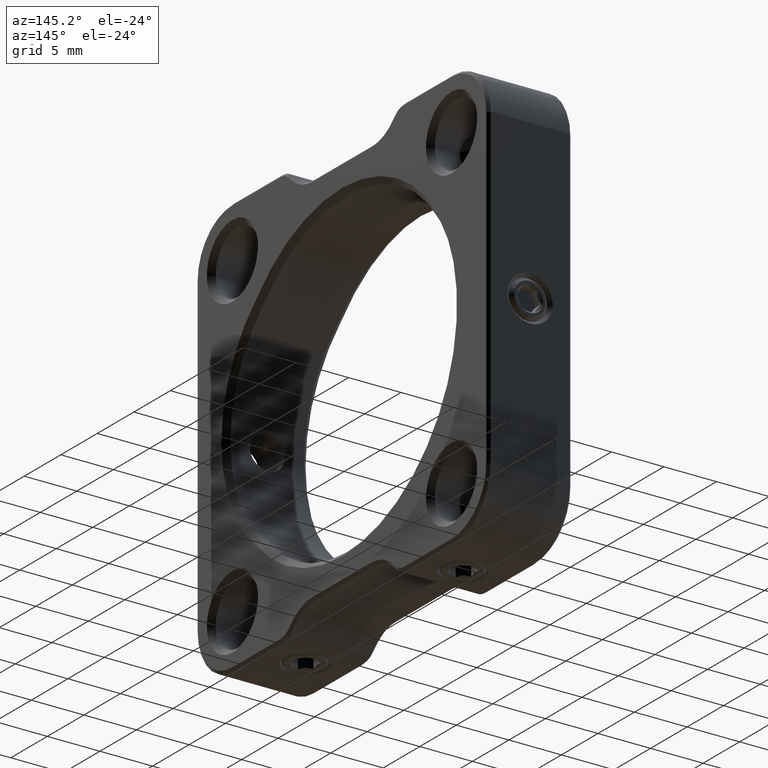
[diagram: clean part render]
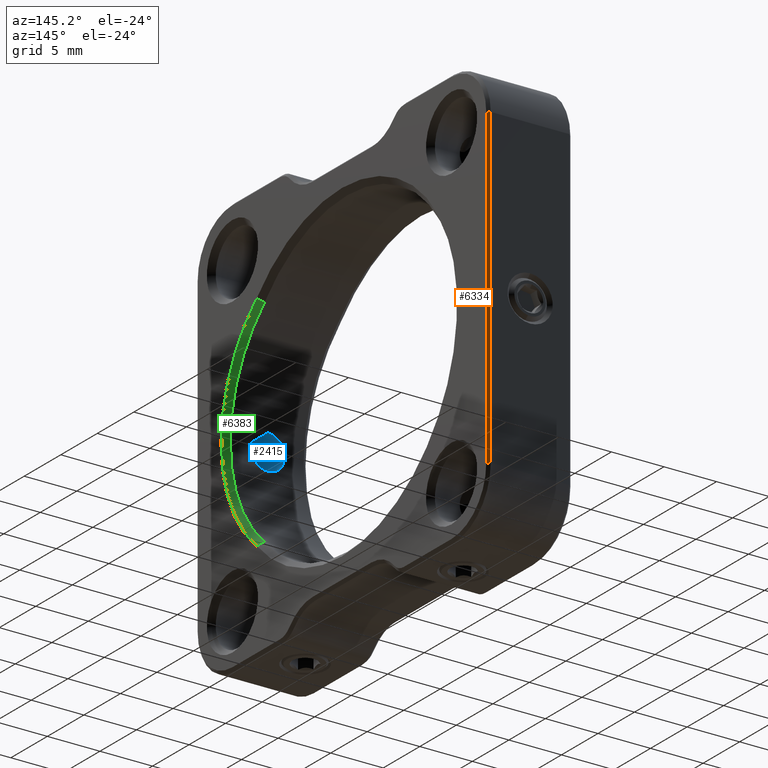
[diagram: same view with three faces highlighted in distinct colors, each labeled with its STEP entity id]
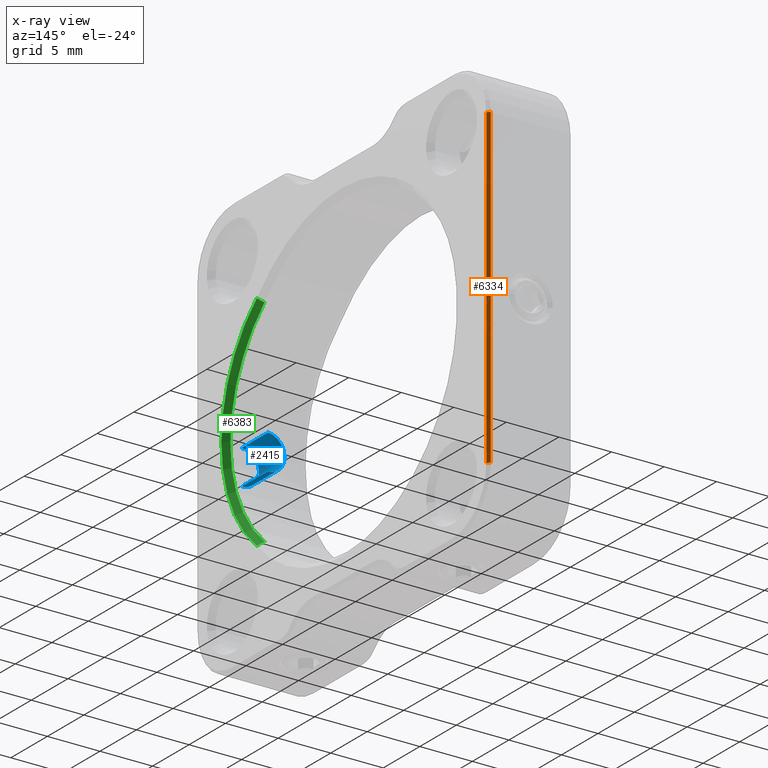
[diagram: x-ray of the same camera — body ghosted, the three highlighted faces saturated]
A machine part, auxiliary view with three faces highlighted in distinct colors.
The next image is the same camera in x-ray (body ghosted, the three faces saturated) — at least one of them is partly hidden behind the body in this view.
Their STEP definitions:

[orange] entity #6334 — the highlighted planar face has unit normal (0.7071, 0.7071, 0).
#328 = FACE_OUTER_BOUND ( 'NONE', #3293, .T. ) ;
#378 = CARTESIAN_POINT ( 'NONE',  ( -10.70960063692994879, 21.85930122340910842, 55.00000000000000711 ) ) ;
#895 = CARTESIAN_POINT ( 'NONE',  ( -10.95960063692994879, 22.10930122340910842, 25.00000000000000711 ) ) ;
#944 = VECTOR ( 'NONE', #4380, 1000.000000000000114 ) ;
#1165 = CARTESIAN_POINT ( 'NONE',  ( -10.70960063692994879, 21.85930122340910842, 55.00000000000000711 ) ) ;
#1246 = EDGE_CURVE ( 'NONE', #7342, #8531, #7981, .T. ) ;
#1423 = DIRECTION ( 'NONE',  ( 0.000000000000000000, 0.000000000000000000, 1.000000000000000000 ) ) ;
#1530 = ORIENTED_EDGE ( 'NONE', *, *, #7220, .F. ) ;
#1605 = PLANE ( 'NONE',  #6769 ) ;
#1770 = LINE ( 'NONE', #1165, #6395 ) ;
#2129 = CARTESIAN_POINT ( 'NONE',  ( -10.70960063692994879, 21.85930122340910842, 40.00000000000001421 ) ) ;
#2220 = ORIENTED_EDGE ( 'NONE', *, *, #4821, .F. ) ;
#2239 = ORIENTED_EDGE ( 'NONE', *, *, #3221, .F. ) ;
#3079 = DIRECTION ( 'NONE',  ( 0.000000000000000000, 0.000000000000000000, -1.000000000000000000 ) ) ;
#3221 = EDGE_CURVE ( 'NONE', #8531, #7296, #8177, .T. ) ;
#3293 = EDGE_LOOP ( 'NONE', ( #2239, #4900, #2220, #1530 ) ) ;
#4380 = DIRECTION ( 'NONE',  ( -0.7071067811865474617, 0.7071067811865474617, 0.000000000000000000 ) ) ;
#4505 = DIRECTION ( 'NONE',  ( 0.7071067811865475727, 0.7071067811865475727, 0.000000000000000000 ) ) ;
#4821 = EDGE_CURVE ( 'NONE', #5156, #7342, #6732, .T. ) ;
#4900 = ORIENTED_EDGE ( 'NONE', *, *, #1246, .F. ) ;
#5156 = VERTEX_POINT ( 'NONE', #378 ) ;
#5604 = VECTOR ( 'NONE', #9171, 1000.000000000000114 ) ;
#6334 = ADVANCED_FACE ( 'NONE', ( #328 ), #1605, .T. ) ;
#6395 = VECTOR ( 'NONE', #1423, 1000.000000000000000 ) ;
#6490 = CARTESIAN_POINT ( 'NONE',  ( -10.95960063692994879, 22.10930122340910842, 25.00000000000000711 ) ) ;
#6589 = VECTOR ( 'NONE', #7559, 1000.000000000000000 ) ;
#6732 = LINE ( 'NONE', #7280, #944 ) ;
#6769 = AXIS2_PLACEMENT_3D ( 'NONE', #2129, #4505, #3079 ) ;
#7220 = EDGE_CURVE ( 'NONE', #7296, #5156, #1770, .T. ) ;
#7280 = CARTESIAN_POINT ( 'NONE',  ( -10.70960063692994879, 21.85930122340910842, 55.00000000000000711 ) ) ;
#7296 = VERTEX_POINT ( 'NONE', #8036 ) ;
#7342 = VERTEX_POINT ( 'NONE', #8906 ) ;
#7559 = DIRECTION ( 'NONE',  ( 0.000000000000000000, 0.000000000000000000, -1.000000000000000000 ) ) ;
#7981 = LINE ( 'NONE', #895, #6589 ) ;
#8036 = CARTESIAN_POINT ( 'NONE',  ( -10.70960063692994879, 21.85930122340910842, 25.00000000000000711 ) ) ;
#8177 = LINE ( 'NONE', #9270, #5604 ) ;
#8531 = VERTEX_POINT ( 'NONE', #6490 ) ;
#8906 = CARTESIAN_POINT ( 'NONE',  ( -10.95960063692994879, 22.10930122340910842, 55.00000000000000711 ) ) ;
#9171 = DIRECTION ( 'NONE',  ( 0.7071067811865474617, -0.7071067811865474617, 0.000000000000000000 ) ) ;
#9270 = CARTESIAN_POINT ( 'NONE',  ( -10.95960063692994879, 22.10930122340910842, 25.00000000000000711 ) ) ;

[blue] entity #2415 — the highlighted cylindrical surface (edge-blend (fillet) strip) has radius 1.65 mm, axis along (-0, -1, -0).
#216 = CARTESIAN_POINT ( 'NONE',  ( -15.71572568399472836, -13.82691060832602403, 38.68781301337136824 ) ) ;
#325 = CARTESIAN_POINT ( 'NONE',  ( -14.70960063692994879, -17.89069877659089158, 41.65000000000001279 ) ) ;
#326 = ORIENTED_EDGE ( 'NONE', *, *, #7304, .T. ) ;
#375 = CARTESIAN_POINT ( 'NONE',  ( -14.70960063692994879, -13.78948603514530191, 38.35000000000001563 ) ) ;
#685 = ORIENTED_EDGE ( 'NONE', *, *, #6388, .T. ) ;
#987 = CARTESIAN_POINT ( 'NONE',  ( -15.24190752573225005, -13.79968435690930839, 38.43448257148707370 ) ) ;
#1018 = CARTESIAN_POINT ( 'NONE',  ( -15.80053497431662457, -13.83361147108922573, 38.75745184759037443 ) ) ;
#1048 = CARTESIAN_POINT ( 'NONE',  ( -14.70960063692994879, -13.78948603514530191, 38.35000000000001563 ) ) ;
#1083 = CARTESIAN_POINT ( 'NONE',  ( -14.81872989024464893, -13.78948603514529481, 38.35000000000000142 ) ) ;
#1144 = CARTESIAN_POINT ( 'NONE',  ( -15.44108710665071449, -13.80906737880190782, 41.48294278190731177 ) ) ;
#1206 = CARTESIAN_POINT ( 'NONE',  ( -15.24130088137819428, -13.79966028147128299, 41.56572238913837936 ) ) ;
#1620 = ORIENTED_EDGE ( 'NONE', *, *, #8850, .F. ) ;
#1660 = DIRECTION ( 'NONE',  ( -0.000000000000000000, -1.000000000000000000, -0.000000000000000000 ) ) ;
#1765 = CARTESIAN_POINT ( 'NONE',  ( -16.35952146621214354, -13.89068910017046576, 39.78393199430575322 ) ) ;
#1803 = CARTESIAN_POINT ( 'NONE',  ( -16.14110106471266803, -13.86560749399994741, 40.82755848851353164 ) ) ;
#2323 = CARTESIAN_POINT ( 'NONE',  ( -14.70960063692994879, -13.78948603514530191, 41.65000000000001279 ) ) ;
#2326 = CARTESIAN_POINT ( 'NONE',  ( -14.70960063692994879, -17.89069877659089158, 38.35000000000001563 ) ) ;
#2415 = ADVANCED_FACE ( 'NONE', ( #6072 ), #4186, .F. ) ;
#2594 = CARTESIAN_POINT ( 'NONE',  ( -15.95342174233057442, -13.84687620918851358, 41.08961482337091553 ) ) ;
#2622 = CARTESIAN_POINT ( 'NONE',  ( -14.81733859615756188, -13.78948603514530014, 41.64999999999999858 ) ) ;
#2994 = DIRECTION ( 'NONE',  ( 0.000000000000000000, 0.000000000000000000, -1.000000000000000000 ) ) ;
#3229 = CARTESIAN_POINT ( 'NONE',  ( -16.02860456820856072, -13.85340011415271633, 38.98561191477057264 ) ) ;
#3330 = CARTESIAN_POINT ( 'NONE',  ( -16.02167714351405436, -13.85344427024464586, 41.00623146816376874 ) ) ;
#3508 = VERTEX_POINT ( 'NONE', #2323 ) ;
#3632 = VERTEX_POINT ( 'NONE', #375 ) ;
#3947 = CARTESIAN_POINT ( 'NONE',  ( -15.13705272490057752, -13.79588760223206201, 38.40270240422182013 ) ) ;
#3980 = CARTESIAN_POINT ( 'NONE',  ( -16.27550338931204976, -13.88061579661105327, 40.53117854130204734 ) ) ;
#4044 = CARTESIAN_POINT ( 'NONE',  ( -15.44169237119957572, -13.80910039439570447, 38.51735468319014899 ) ) ;
#4173 = CARTESIAN_POINT ( 'NONE',  ( -15.79948100611674988, -13.83352062970075380, 41.24358843127895113 ) ) ;
#4186 = CYLINDRICAL_SURFACE ( 'NONE', #8197, 1.649999999999998579 ) ;
#4392 = CARTESIAN_POINT ( 'NONE',  ( -14.70960063692994879, -17.39069877659089158, 40.00000000000001421 ) ) ;
#4620 = ORIENTED_EDGE ( 'NONE', *, *, #8983, .T. ) ;
#4635 = CIRCLE ( 'NONE', #9221, 1.649999999999998579 ) ;
#4651 = CARTESIAN_POINT ( 'NONE',  ( -16.15150077473748880, -13.86659905548015814, 39.16957103245939464 ) ) ;
#4682 = CARTESIAN_POINT ( 'NONE',  ( -16.31611212074723127, -13.88520475001560328, 39.56663049264728471 ) ) ;
#4841 = VECTOR ( 'NONE', #1660, 1000.000000000000000 ) ;
#4865 = CARTESIAN_POINT ( 'NONE',  ( -15.53760549012443981, -13.81475005820493251, 41.43124163295500040 ) ) ;
#5232 = DIRECTION ( 'NONE',  ( -0.000000000000000000, -1.000000000000000000, -0.000000000000000000 ) ) ;
#5237 = EDGE_LOOP ( 'NONE', ( #4620, #685, #326, #1620 ) ) ;
#5361 = CARTESIAN_POINT ( 'NONE',  ( -14.70960063692994879, -17.89069877659089158, 40.00000000000001421 ) ) ;
#5416 = CARTESIAN_POINT ( 'NONE',  ( -15.53643097721630362, -13.81467542989844333, 38.56805241485918856 ) ) ;
#5451 = CARTESIAN_POINT ( 'NONE',  ( -16.19274821678159881, -13.87126020854660169, 40.73107819625386128 ) ) ;
#5635 = B_SPLINE_CURVE_WITH_KNOTS ( 'NONE', 3,
 ( #1048, #1083, #9067, #3947, #987, #4044, #5416, #216, #1018, #3229, #4651, #4682, #1765, #6956, #7686, #8421, #3980, #5451, #1803, #3330, #2594, #4173, #7078, #4865, #1144, #1206, #6374, #8539, #2622, #7105 ),
 .UNSPECIFIED., .F., .F.,
 ( 4, 2, 2, 2, 2, 2, 2, 2, 2, 2, 2, 2, 2, 2, 4 ),
 ( 0.000000000000000000, 0.0003227172001944440100, 0.0006454344003888880200, 0.0009681516005833320842, 0.001290868800777780377, 0.001936303201166692141, 0.002581737601555603688, 0.002904454801750059895, 0.003227172001944516103, 0.003549889202138972310, 0.003872606402333428084, 0.004195323602527884291, 0.004518040802722340064, 0.004840758002916796705, 0.005163475203111252479 ),
 .UNSPECIFIED. ) ;
#6072 = FACE_OUTER_BOUND ( 'NONE', #5237, .T. ) ;
#6093 = VERTEX_POINT ( 'NONE', #6297 ) ;
#6161 = DIRECTION ( 'NONE',  ( -0.000000000000000000, -1.000000000000000000, -0.000000000000000000 ) ) ;
#6200 = VECTOR ( 'NONE', #6161, 1000.000000000000000 ) ;
#6297 = CARTESIAN_POINT ( 'NONE',  ( -14.70960063692994879, -17.39069877659089158, 38.35000000000001563 ) ) ;
#6374 = CARTESIAN_POINT ( 'NONE',  ( -15.13843543891372612, -13.79592934073929023, 41.59694906637150780 ) ) ;
#6388 = EDGE_CURVE ( 'NONE', #3508, #8400, #9308, .T. ) ;
#6806 = DIRECTION ( 'NONE',  ( 0.000000000000000000, 0.000000000000000000, -1.000000000000000000 ) ) ;
#6956 = CARTESIAN_POINT ( 'NONE',  ( -16.35964005567496926, -13.89070359443718239, 40.10712585161192578 ) ) ;
#7078 = CARTESIAN_POINT ( 'NONE',  ( -15.71622729918996342, -13.82695041206061326, 41.31177262192980493 ) ) ;
#7105 = CARTESIAN_POINT ( 'NONE',  ( -14.70960063692994879, -13.78948603514530191, 41.65000000000001279 ) ) ;
#7304 = EDGE_CURVE ( 'NONE', #8400, #6093, #4635, .T. ) ;
#7440 = CARTESIAN_POINT ( 'NONE',  ( -14.70960063692994879, -17.39069877659089158, 41.65000000000001279 ) ) ;
#7469 = DIRECTION ( 'NONE',  ( -0.000000000000000000, -1.000000000000000000, -0.000000000000000000 ) ) ;
#7686 = CARTESIAN_POINT ( 'NONE',  ( -16.34888351930318251, -13.88937685811089651, 40.21656663892609629 ) ) ;
#8197 = AXIS2_PLACEMENT_3D ( 'NONE', #5361, #5232, #6806 ) ;
#8400 = VERTEX_POINT ( 'NONE', #7440 ) ;
#8421 = CARTESIAN_POINT ( 'NONE',  ( -16.30670226166501990, -13.88431931297022714, 40.42827079961899273 ) ) ;
#8539 = CARTESIAN_POINT ( 'NONE',  ( -14.92678181409582905, -13.79082843470618336, 41.63920039783489813 ) ) ;
#8790 = LINE ( 'NONE', #2326, #4841 ) ;
#8850 = EDGE_CURVE ( 'NONE', #3632, #6093, #8790, .T. ) ;
#8983 = EDGE_CURVE ( 'NONE', #3632, #3508, #5635, .T. ) ;
#9067 = CARTESIAN_POINT ( 'NONE',  ( -14.92601471414559811, -13.79081844831030779, 38.36071971762845578 ) ) ;
#9221 = AXIS2_PLACEMENT_3D ( 'NONE', #4392, #7469, #2994 ) ;
#9308 = LINE ( 'NONE', #325, #6200 ) ;

[green] entity #6383 — the highlighted conical surface has half-angle 45 deg.
#50 = CARTESIAN_POINT ( 'NONE',  ( -11.20960063692993103, -0.3906987765908901955, 40.00000000000001421 ) ) ;
#115 = DIRECTION ( 'NONE',  ( 1.000000000000000000, 0.000000000000000000, 0.000000000000000000 ) ) ;
#232 = EDGE_CURVE ( 'NONE', #6546, #6435, #6643, .T. ) ;
#519 = CARTESIAN_POINT ( 'NONE',  ( -11.04293944162120944, -9.319861613306979820, 29.65360994393762084 ) ) ;
#771 = ORIENTED_EDGE ( 'NONE', *, *, #6903, .F. ) ;
#853 = ORIENTED_EDGE ( 'NONE', *, *, #8858, .F. ) ;
#1531 = CARTESIAN_POINT ( 'NONE',  ( -11.20960063692995945, -9.203198776590888031, 50.22691760747100176 ) ) ;
#1880 = CARTESIAN_POINT ( 'NONE',  ( -10.70960063692994879, -9.553198776591042218, 29.41469916582449429 ) ) ;
#2016 = B_SPLINE_CURVE_WITH_KNOTS ( 'NONE', 3,
 ( #3067, #6821, #6857, #1531 ),
 .UNSPECIFIED., .F., .F.,
 ( 4, 4 ),
 ( 0.000000000000000000, 0.0007077701160569497846 ),
 .UNSPECIFIED. ) ;
#2274 = EDGE_LOOP ( 'NONE', ( #853, #8435, #6104, #771 ) ) ;
#3067 = CARTESIAN_POINT ( 'NONE',  ( -10.70960063692994879, -9.553198776591047547, 50.58530083417552703 ) ) ;
#3255 = VERTEX_POINT ( 'NONE', #7059 ) ;
#3338 = CARTESIAN_POINT ( 'NONE',  ( -11.20960063692995945, -9.203198776590884478, 29.77308239252903022 ) ) ;
#3678 = DIRECTION ( 'NONE',  ( 0.000000000000000000, 0.000000000000000000, -1.000000000000000000 ) ) ;
#3766 = FACE_OUTER_BOUND ( 'NONE', #2274, .T. ) ;
#3952 = AXIS2_PLACEMENT_3D ( 'NONE', #8771, #115, #9114 ) ;
#4001 = CONICAL_SURFACE ( 'NONE', #3952, 13.49999999999999822, 0.7853981633974569387 ) ;
#4860 = CIRCLE ( 'NONE', #4874, 13.49999999999999822 ) ;
#4874 = AXIS2_PLACEMENT_3D ( 'NONE', #50, #6614, #3678 ) ;
#5464 = CARTESIAN_POINT ( 'NONE',  ( -10.70960063692994879, -9.553198776591042218, 29.41469916582449429 ) ) ;
#6104 = ORIENTED_EDGE ( 'NONE', *, *, #232, .F. ) ;
#6383 = ADVANCED_FACE ( 'NONE', ( #3766 ), #4001, .F. ) ;
#6415 = EDGE_CURVE ( 'NONE', #6435, #3255, #7259, .T. ) ;
#6435 = VERTEX_POINT ( 'NONE', #5464 ) ;
#6546 = VERTEX_POINT ( 'NONE', #3338 ) ;
#6614 = DIRECTION ( 'NONE',  ( 1.000000000000000000, 0.000000000000000000, 0.000000000000000000 ) ) ;
#6643 = B_SPLINE_CURVE_WITH_KNOTS ( 'NONE', 3,
 ( #7858, #519, #9345, #1880 ),
 .UNSPECIFIED., .F., .F.,
 ( 4, 4 ),
 ( 2.023017827855917974E-17, 0.0007077701160569325458 ),
 .UNSPECIFIED. ) ;
#6821 = CARTESIAN_POINT ( 'NONE',  ( -10.87627258955892806, -9.436528409750769342, 50.46585074764143286 ) ) ;
#6857 = CARTESIAN_POINT ( 'NONE',  ( -11.04293944162121832, -9.319861613307150350, 50.34639005606225481 ) ) ;
#6903 = EDGE_CURVE ( 'NONE', #7582, #6546, #4860, .T. ) ;
#7059 = CARTESIAN_POINT ( 'NONE',  ( -10.70960063692994879, -9.553198776591047547, 50.58530083417552703 ) ) ;
#7069 = CARTESIAN_POINT ( 'NONE',  ( -11.20960063692995945, -9.203198776590888031, 50.22691760747100176 ) ) ;
#7259 = CIRCLE ( 'NONE', #9395, 13.99999999999998757 ) ;
#7582 = VERTEX_POINT ( 'NONE', #7069 ) ;
#7597 = DIRECTION ( 'NONE',  ( 0.000000000000000000, 0.000000000000000000, -1.000000000000000000 ) ) ;
#7666 = DIRECTION ( 'NONE',  ( -1.000000000000000000, -0.000000000000000000, -0.000000000000000000 ) ) ;
#7858 = CARTESIAN_POINT ( 'NONE',  ( -11.20960063692995945, -9.203198776590884478, 29.77308239252903022 ) ) ;
#8435 = ORIENTED_EDGE ( 'NONE', *, *, #6415, .F. ) ;
#8465 = CARTESIAN_POINT ( 'NONE',  ( -10.70960063692994879, -0.3906987765908901955, 40.00000000000001421 ) ) ;
#8771 = CARTESIAN_POINT ( 'NONE',  ( -11.20960063692993103, -0.3906987765908901955, 40.00000000000001421 ) ) ;
#8858 = EDGE_CURVE ( 'NONE', #3255, #7582, #2016, .T. ) ;
#9114 = DIRECTION ( 'NONE',  ( 0.000000000000000000, 0.000000000000000000, -1.000000000000000000 ) ) ;
#9345 = CARTESIAN_POINT ( 'NONE',  ( -10.87627258955892806, -9.436528409750753355, 29.53414925235858490 ) ) ;
#9395 = AXIS2_PLACEMENT_3D ( 'NONE', #8465, #7666, #7597 ) ;